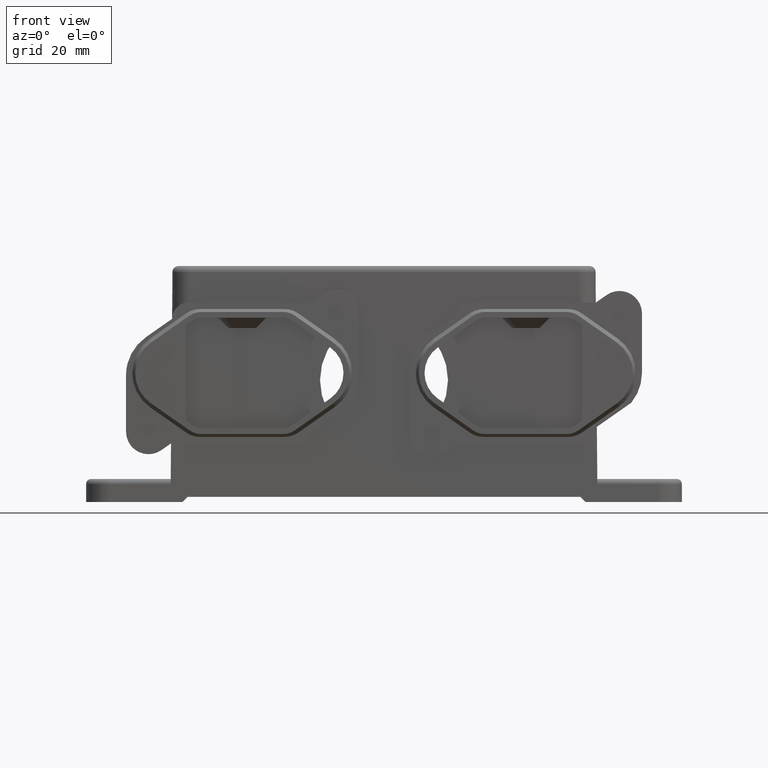
[diagram: clean part render]
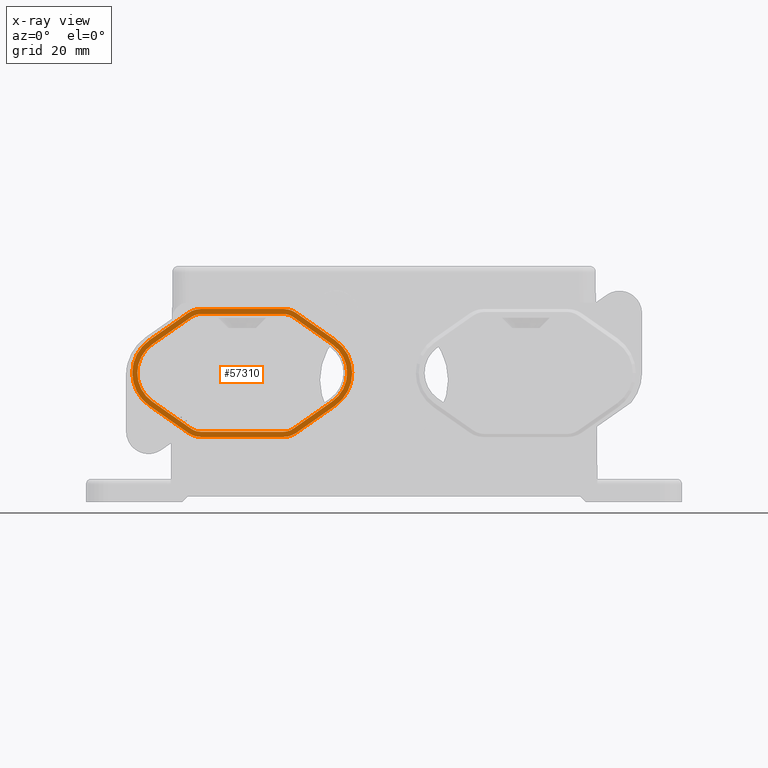
[diagram: x-ray — body ghosted, one internal face saturated and labeled with its STEP entity id]
A machine part, front view, then the same camera in x-ray: the body is ghosted and one INTERNAL B-rep face — a face not visible from any outside direction — is saturated and labeled: STEP entity #57310.
In plain terms, the highlighted planar face has unit normal (0, -1, 0).
Its self-contained STEP definition (entity closure, byte-faithful):
#10410=CARTESIAN_POINT('',(7.9468920702288,-2.9,-7.94999932282602));
#10420=DIRECTION('',(0.,-1.,0.));
#10430=DIRECTION('',(-1.,0.,0.));
#10440=AXIS2_PLACEMENT_3D('',#10410,#10420,#10430);
#10450=CIRCLE('',#10440,3.4);
#10460=CARTESIAN_POINT('',(7.9468920702288,-2.9,-11.349999322826));
#10470=VERTEX_POINT('',#10460);
#10480=CARTESIAN_POINT('',(9.89705195382239,-2.9,-10.7351162734086));
#10490=VERTEX_POINT('',#10480);
#10500=EDGE_CURVE('',#10470,#10490,#10450,.T.);
#19910=CARTESIAN_POINT('',(7.94689207022895,-2.9,8.250000677173));
#19920=DIRECTION('',(0.,-1.,0.));
#19930=DIRECTION('',(-1.,0.,0.));
#19940=AXIS2_PLACEMENT_3D('',#19910,#19920,#19930);
#19950=CIRCLE('',#19940,3.4);
#19960=CARTESIAN_POINT('',(9.89705195382266,-2.9,11.0351176277555));
#19970=VERTEX_POINT('',#19960);
#19980=CARTESIAN_POINT('',(7.94689207022895,-2.9,11.650000677173));
#19990=VERTEX_POINT('',#19980);
#20000=EDGE_CURVE('',#19970,#19990,#19950,.T.);
#24900=CARTESIAN_POINT('',(-18.2610690633718,-2.9,-6.23938526828098));
#24910=VERTEX_POINT('',#24900);
#24940=CARTESIAN_POINT('',(-13.7871728598338,-2.9,0.150000677173302));
#24950=DIRECTION('',(0.,-1.,0.));
#24960=DIRECTION('',(-1.,0.,0.));
#24970=AXIS2_PLACEMENT_3D('',#24940,#24950,#24960);
#24980=CIRCLE('',#24970,7.8);
#24990=CARTESIAN_POINT('',(-18.261069063372,-2.9,6.53938662262745));
#25000=VERTEX_POINT('',#24990);
#25010=EDGE_CURVE('',#25000,#24910,#24980,.T.);
#27900=CARTESIAN_POINT('',(13.587171819727,-2.9,0.150000677173294));
#27910=DIRECTION('',(0.,-1.,0.));
#27920=DIRECTION('',(-1.,0.,0.));
#27930=AXIS2_PLACEMENT_3D('',#27900,#27910,#27920);
#27940=CIRCLE('',#27930,6.8);
#27950=CARTESIAN_POINT('',(17.4874915869142,-2.9,-5.4202332239918));
#27960=VERTEX_POINT('',#27950);
#27970=CARTESIAN_POINT('',(17.4874915869144,-2.9,5.72023457833822));
#27980=VERTEX_POINT('',#27970);
#27990=EDGE_CURVE('',#27960,#27980,#27940,.T.);
#37990=CARTESIAN_POINT('',(-10.6706294302794,-2.9,11.8542696720446));
#38000=VERTEX_POINT('',#37990);
#38030=CARTESIAN_POINT('',(-8.14689311033482,-2.9,8.250000677173));
#38040=DIRECTION('',(0.,-1.,0.));
#38050=DIRECTION('',(-1.,0.,0.));
#38060=AXIS2_PLACEMENT_3D('',#38030,#38040,#38050);
#38070=CIRCLE('',#38060,4.4);
#38080=CARTESIAN_POINT('',(-8.14689311033482,-2.9,12.650000677173));
#38090=VERTEX_POINT('',#38080);
#38100=EDGE_CURVE('',#38090,#38000,#38070,.T.);
#44700=CARTESIAN_POINT('',(7.94689207022981,-2.9,12.650000677173));
#44710=VERTEX_POINT('',#44700);
#44740=CARTESIAN_POINT('',(7.94689207022981,-2.9,8.250000677173));
#44750=DIRECTION('',(0.,-1.,0.));
#44760=DIRECTION('',(-1.,0.,0.));
#44770=AXIS2_PLACEMENT_3D('',#44740,#44750,#44760);
#44780=CIRCLE('',#44770,4.4);
#44790=CARTESIAN_POINT('',(10.4706283901746,-2.9,11.8542696720444));
#44800=VERTEX_POINT('',#44790);
#44810=EDGE_CURVE('',#44800,#44710,#44780,.T.);
#49450=CARTESIAN_POINT('',(-8.14689311033409,-2.9,-7.94999932282602));
#49460=DIRECTION('',(0.,-1.,0.));
#49470=DIRECTION('',(-1.,0.,0.));
#49480=AXIS2_PLACEMENT_3D('',#49450,#49460,#49470);
#49490=CIRCLE('',#49480,3.4);
#49500=CARTESIAN_POINT('',(-10.0970529939275,-2.9,-10.7351162734087));
#49510=VERTEX_POINT('',#49500);
#49520=CARTESIAN_POINT('',(-8.14689311033409,-2.9,-11.349999322826));
#49530=VERTEX_POINT('',#49520);
#49540=EDGE_CURVE('',#49510,#49530,#49490,.T.);
#50450=CARTESIAN_POINT('',(-8.14689311033408,-2.9,8.250000677173));
#50460=DIRECTION('',(0.,-1.,0.));
#50470=DIRECTION('',(-1.,0.,0.));
#50480=AXIS2_PLACEMENT_3D('',#50450,#50460,#50470);
#50490=CIRCLE('',#50480,3.4);
#50500=CARTESIAN_POINT('',(-8.14689311033408,-2.9,11.650000677173));
#50510=VERTEX_POINT('',#50500);
#50520=CARTESIAN_POINT('',(-10.0970529939276,-2.9,11.0351176277556));
#50530=VERTEX_POINT('',#50520);
#50540=EDGE_CURVE('',#50510,#50530,#50490,.T.);
#51650=CARTESIAN_POINT('',(0.,-2.9,18.1051502478066));
#51660=DIRECTION('',(-0.819152044288994,0.,-0.573576436351043));
#51670=VECTOR('',#51660,1.);
#51680=LINE('',#51650,#51670);
#51690=CARTESIAN_POINT('',(-17.6874926270202,-2.9,5.72023457833844));
#51700=VERTEX_POINT('',#51690);
#51710=EDGE_CURVE('',#50530,#51700,#51680,.T.);
#55790=CARTESIAN_POINT('',(0.,-2.9,-18.8858812462905));
#55800=DIRECTION('',(-0.819152044288984,0.,-0.573576436351057));
#55810=VECTOR('',#55800,1.);
#55820=LINE('',#55790,#55810);
#55830=CARTESIAN_POINT('',(18.0610680232662,-2.9,-6.23938526828081));
#55840=VERTEX_POINT('',#55830);
#55850=CARTESIAN_POINT('',(10.470628390173,-2.9,-11.5542683176985));
#55860=VERTEX_POINT('',#55850);
#55870=EDGE_CURVE('',#55840,#55860,#55820,.T.);
#56140=CARTESIAN_POINT('',(4.424999479947,-2.9,12.400000677173));
#56150=DIRECTION('',(0.,1.,-0.));
#56160=DIRECTION('',(-1.,0.,0.));
#56170=AXIS2_PLACEMENT_3D('',#56140,#56150,#56160);
#56180=PLANE('',#56170);
#56190=CARTESIAN_POINT('',(7.94689207022838,-2.9,-7.949999322827));
#56200=DIRECTION('',(0.,-1.,0.));
#56210=DIRECTION('',(-1.,0.,0.));
#56220=AXIS2_PLACEMENT_3D('',#56190,#56200,#56210);
#56230=CIRCLE('',#56220,4.4);
#56240=CARTESIAN_POINT('',(7.94689207022838,-2.9,-12.349999322827));
#56250=VERTEX_POINT('',#56240);
#56260=EDGE_CURVE('',#56250,#55860,#56230,.T.);
#56270=ORIENTED_EDGE('',*,*,#56260,.F.);
#56280=ORIENTED_EDGE('',*,*,#55870,.T.);
#56290=CARTESIAN_POINT('',(13.5871718197279,-2.9,0.15000067717325));
#56300=DIRECTION('',(0.,-1.,0.));
#56310=DIRECTION('',(-1.,0.,0.));
#56320=AXIS2_PLACEMENT_3D('',#56290,#56300,#56310);
#56330=CIRCLE('',#56320,7.8);
#56340=CARTESIAN_POINT('',(18.0610680232665,-2.9,6.53938662262711));
#56350=VERTEX_POINT('',#56340);
#56360=EDGE_CURVE('',#55840,#56350,#56330,.T.);
#56370=ORIENTED_EDGE('',*,*,#56360,.F.);
#56380=CARTESIAN_POINT('',(0.,-2.9,19.1858826006382));
#56390=DIRECTION('',(0.819152044288959,0.,-0.573576436351093));
#56400=VECTOR('',#56390,1.);
#56410=LINE('',#56380,#56400);
#56420=EDGE_CURVE('',#44800,#56350,#56410,.T.);
#56430=ORIENTED_EDGE('',*,*,#56420,.T.);
#56440=ORIENTED_EDGE('',*,*,#44810,.F.);
#56450=CARTESIAN_POINT('',(0.,-2.9,12.650000677173));
#56460=DIRECTION('',(1.,0.,0.));
#56470=VECTOR('',#56460,1.);
#56480=LINE('',#56450,#56470);
#56490=EDGE_CURVE('',#38090,#44710,#56480,.T.);
#56500=ORIENTED_EDGE('',*,*,#56490,.T.);
#56510=ORIENTED_EDGE('',*,*,#38100,.F.);
#56520=CARTESIAN_POINT('',(0.,-2.9,19.3259248365685));
#56530=DIRECTION('',(0.819152044288994,0.,0.573576436351043));
#56540=VECTOR('',#56530,1.);
#56550=LINE('',#56520,#56540);
#56560=EDGE_CURVE('',#25000,#38000,#56550,.T.);
#56570=ORIENTED_EDGE('',*,*,#56560,.T.);
#56580=ORIENTED_EDGE('',*,*,#25010,.F.);
#56590=CARTESIAN_POINT('',(0.,-2.9,-19.025923482221));
#56600=DIRECTION('',(-0.819152044289014,0.,0.573576436351015));
#56610=VECTOR('',#56600,1.);
#56620=LINE('',#56590,#56610);
#56630=CARTESIAN_POINT('',(-10.6706294302779,-2.9,-11.5542683176987));
#56640=VERTEX_POINT('',#56630);
#56650=EDGE_CURVE('',#56640,#24910,#56620,.T.);
#56660=ORIENTED_EDGE('',*,*,#56650,.T.);
#56670=CARTESIAN_POINT('',(-8.1468931103334,-2.9,-7.949999322827));
#56680=DIRECTION('',(0.,-1.,0.));
#56690=DIRECTION('',(-1.,0.,0.));
#56700=AXIS2_PLACEMENT_3D('',#56670,#56680,#56690);
#56710=CIRCLE('',#56700,4.4);
#56720=CARTESIAN_POINT('',(-8.1468931103334,-2.9,-12.349999322827));
#56730=VERTEX_POINT('',#56720);
#56740=EDGE_CURVE('',#56640,#56730,#56710,.T.);
#56750=ORIENTED_EDGE('',*,*,#56740,.F.);
#56760=CARTESIAN_POINT('',(0.,-2.9,-12.349999322827));
#56770=DIRECTION('',(-1.,0.,0.));
#56780=VECTOR('',#56770,1.);
#56790=LINE('',#56760,#56780);
#56800=EDGE_CURVE('',#56250,#56730,#56790,.T.);
#56810=ORIENTED_EDGE('',*,*,#56800,.T.);
#56820=EDGE_LOOP('',(#56810,#56750,#56660,#56580,#56570,#56510,#56500,
#56440,#56430,#56370,#56280,#56270));
#56830=FACE_OUTER_BOUND('',#56820,.T.);
#56840=ORIENTED_EDGE('',*,*,#49540,.T.);
#56850=CARTESIAN_POINT('',(0.,-2.9,-17.8051488934591));
#56860=DIRECTION('',(0.819152044289014,0.,-0.573576436351015));
#56870=VECTOR('',#56860,1.);
#56880=LINE('',#56850,#56870);
#56890=CARTESIAN_POINT('',(-17.68749262702,-2.9,-5.420233223992));
#56900=VERTEX_POINT('',#56890);
#56910=EDGE_CURVE('',#56900,#49510,#56880,.T.);
#56920=ORIENTED_EDGE('',*,*,#56910,.T.);
#56930=CARTESIAN_POINT('',(-13.7871728598331,-2.9,0.150000677173292));
#56940=DIRECTION('',(0.,-1.,0.));
#56950=DIRECTION('',(-1.,0.,0.));
#56960=AXIS2_PLACEMENT_3D('',#56930,#56940,#56950);
#56970=CIRCLE('',#56960,6.8);
#56980=EDGE_CURVE('',#51700,#56900,#56970,.T.);
#56990=ORIENTED_EDGE('',*,*,#56980,.T.);
#57000=ORIENTED_EDGE('',*,*,#51710,.T.);
#57010=ORIENTED_EDGE('',*,*,#50540,.T.);
#57020=CARTESIAN_POINT('',(0.,-2.9,11.650000677173));
#57030=DIRECTION('',(-1.,0.,0.));
#57040=VECTOR('',#57030,1.);
#57050=LINE('',#57020,#57040);
#57060=EDGE_CURVE('',#19990,#50510,#57050,.T.);
#57070=ORIENTED_EDGE('',*,*,#57060,.T.);
#57080=ORIENTED_EDGE('',*,*,#20000,.T.);
#57090=CARTESIAN_POINT('',(0.,-2.9,17.9651080118761));
#57100=DIRECTION('',(-0.819152044288959,0.,0.573576436351093));
#57110=VECTOR('',#57100,1.);
#57120=LINE('',#57090,#57110);
#57130=EDGE_CURVE('',#27980,#19970,#57120,.T.);
#57140=ORIENTED_EDGE('',*,*,#57130,.T.);
#57150=ORIENTED_EDGE('',*,*,#27990,.T.);
#57160=CARTESIAN_POINT('',(-0.0286788218175538,-2.9,-17.685187784752));
#57170=DIRECTION('',(0.819152044288984,0.,0.573576436351057));
#57180=VECTOR('',#57170,1.);
#57190=LINE('',#57160,#57180);
#57200=EDGE_CURVE('',#10490,#27960,#57190,.T.);
#57210=ORIENTED_EDGE('',*,*,#57200,.T.);
#57220=ORIENTED_EDGE('',*,*,#10500,.T.);
#57230=CARTESIAN_POINT('',(0.,-2.9,-11.349999322826));
#57240=DIRECTION('',(1.,0.,0.));
#57250=VECTOR('',#57240,1.);
#57260=LINE('',#57230,#57250);
#57270=EDGE_CURVE('',#49530,#10470,#57260,.T.);
#57280=ORIENTED_EDGE('',*,*,#57270,.T.);
#57290=EDGE_LOOP('',(#57280,#57220,#57210,#57150,#57140,#57080,#57070,
#57010,#57000,#56990,#56920,#56840));
#57300=FACE_BOUND('',#57290,.T.);
#57310=ADVANCED_FACE('',(#56830,#57300),#56180,.T.);